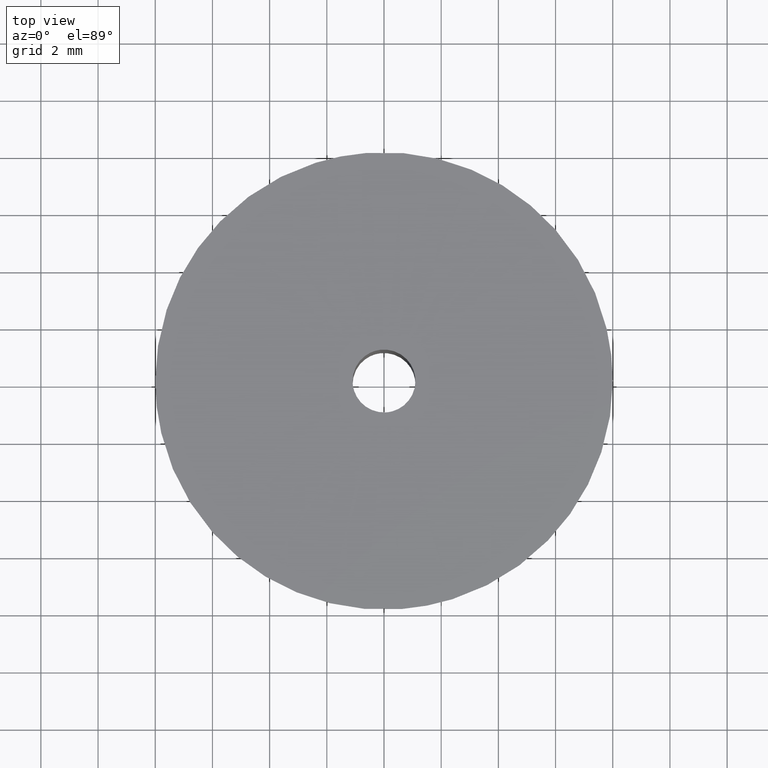
[diagram: clean part render]
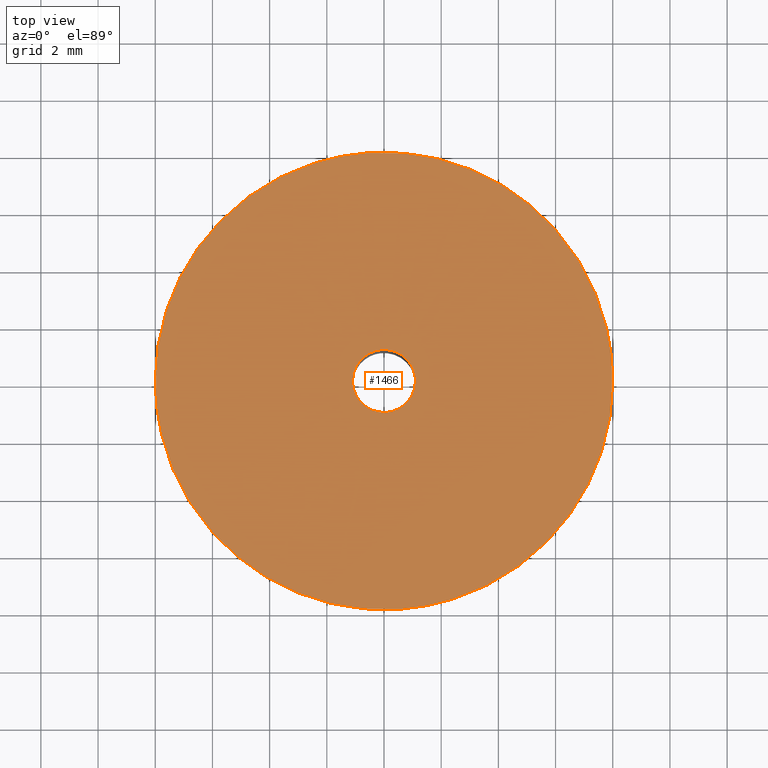
[diagram: same view with one face highlighted and labeled with its STEP entity id]
A machine part, top view. The second image highlights one B-rep face of the part: STEP entity #1466.
In plain terms, the highlighted face is a freeform B-spline surface patch.
Its self-contained STEP definition (entity closure, byte-faithful):
#549=CARTESIAN_POINT('',(0.627668122354431,-7.975338299087095,11.999997064181500));
#550=VERTEX_POINT('',#549);
#556=CARTESIAN_POINT('',(-8.0,0.0,12.0));
#557=VERTEX_POINT('',#556);
#558=CARTESIAN_POINT('',(0.627668122354431,-7.975338299087096,11.999997064181498));
#559=CARTESIAN_POINT('',(0.314318495939624,-7.999999281593804,11.999997117494733));
#560=CARTESIAN_POINT('',(-0.000000055408124,-7.999999295967855,11.999997175168620));
#561=CARTESIAN_POINT('',(-8.000000026615574,-7.999999661814576,11.999998643077864));
#562=CARTESIAN_POINT('',(-8.0,0.0,12.0));
#570=(BOUNDED_CURVE()B_SPLINE_CURVE(2,(#558,#559,#560,#561,#562),.UNSPECIFIED.,.F.,.U.)B_SPLINE_CURVE_WITH_KNOTS((3,2,3),(0.736331399203222,0.750000000000000,1.0),.UNSPECIFIED.)CURVE()GEOMETRIC_REPRESENTATION_ITEM()RATIONAL_B_SPLINE_CURVE((0.969723561880926,0.983986238063822,1.0,0.707106781186548,1.0))REPRESENTATION_ITEM(''));
#571=EDGE_CURVE('',#550,#557,#570,.T.);
#573=CARTESIAN_POINT('',(-0.627668122354432,7.975338299087094,11.999997064181500));
#574=VERTEX_POINT('',#573);
#575=CARTESIAN_POINT('',(-8.0,0.0,12.0));
#576=CARTESIAN_POINT('',(-7.999999971207449,7.395127832823927,11.999998532090750));
#577=CARTESIAN_POINT('',(-0.627668122354432,7.975338299087094,11.999997064181498));
#585=(BOUNDED_CURVE()B_SPLINE_CURVE(2,(#575,#576,#577),.UNSPECIFIED.,.F.,.U.)B_SPLINE_CURVE_WITH_KNOTS((3,3),(0.0,0.236331399203222),.UNSPECIFIED.)CURVE()GEOMETRIC_REPRESENTATION_ITEM()RATIONAL_B_SPLINE_CURVE((1.0,0.723120543122726,0.969723561880926))REPRESENTATION_ITEM(''));
#586=EDGE_CURVE('',#557,#574,#585,.T.);
#632=CARTESIAN_POINT('',(8.0,0.0,12.0));
#633=VERTEX_POINT('',#632);
#634=CARTESIAN_POINT('',(-0.627668122354432,7.975338299087094,11.999997064181498));
#635=CARTESIAN_POINT('',(-0.314318495939624,7.999999281593803,11.999997117494724));
#636=CARTESIAN_POINT('',(0.000000055408124,7.999999295967855,11.999997175168611));
#637=CARTESIAN_POINT('',(8.000000026615574,7.999999661814575,11.999998643077864));
#638=CARTESIAN_POINT('',(8.0,0.0,12.0));
#646=(BOUNDED_CURVE()B_SPLINE_CURVE(2,(#634,#635,#636,#637,#638),.UNSPECIFIED.,.F.,.U.)B_SPLINE_CURVE_WITH_KNOTS((3,2,3),(0.236331399203222,0.250000000000000,0.500000000000000),.UNSPECIFIED.)CURVE()GEOMETRIC_REPRESENTATION_ITEM()RATIONAL_B_SPLINE_CURVE((0.969723561880926,0.983986238063822,1.0,0.707106781186548,1.0))REPRESENTATION_ITEM(''));
#647=EDGE_CURVE('',#574,#633,#646,.T.);
#649=CARTESIAN_POINT('',(8.0,0.0,12.0));
#650=CARTESIAN_POINT('',(7.999999971207449,-7.395127832823927,11.999998532090750));
#651=CARTESIAN_POINT('',(0.627668122354431,-7.975338299087096,11.999997064181498));
#659=(BOUNDED_CURVE()B_SPLINE_CURVE(2,(#649,#650,#651),.UNSPECIFIED.,.F.,.U.)B_SPLINE_CURVE_WITH_KNOTS((3,3),(0.500000000000000,0.736331399203222),.UNSPECIFIED.)CURVE()GEOMETRIC_REPRESENTATION_ITEM()RATIONAL_B_SPLINE_CURVE((1.0,0.723120543122726,0.969723561880926))REPRESENTATION_ITEM(''));
#660=EDGE_CURVE('',#633,#550,#659,.T.);
#701=CARTESIAN_POINT('',(-0.129835685511386,1.092310713471145,12.000000000000011));
#702=VERTEX_POINT('',#701);
#703=CARTESIAN_POINT('',(1.100000000000000,0.0,12.0));
#704=VERTEX_POINT('',#703);
#705=CARTESIAN_POINT('',(-0.129835685511386,1.092310713471145,12.000000000000012));
#706=CARTESIAN_POINT('',(-0.065145534884748,1.100000000000000,12.000000000000002));
#707=CARTESIAN_POINT('',(0.0,1.100000000000000,12.0));
#708=CARTESIAN_POINT('',(1.100000000000000,1.100000000000000,12.0));
#709=CARTESIAN_POINT('',(1.100000000000000,0.0,12.0));
#717=(BOUNDED_CURVE()B_SPLINE_CURVE(2,(#705,#706,#707,#708,#709),.UNSPECIFIED.,.F.,.U.)B_SPLINE_CURVE_WITH_KNOTS((3,2,3),(0.229562778719813,0.250000000000000,0.500000000000000),.UNSPECIFIED.)CURVE()GEOMETRIC_REPRESENTATION_ITEM()RATIONAL_B_SPLINE_CURVE((0.956027352401419,0.976056305902572,1.0,0.707106781186548,1.0))REPRESENTATION_ITEM(''));
#718=EDGE_CURVE('',#702,#704,#717,.T.);
#759=CARTESIAN_POINT('',(0.067153393495066,-1.097948278263642,12.0));
#760=VERTEX_POINT('',#759);
#766=CARTESIAN_POINT('',(1.100000000000000,0.0,12.0));
#767=CARTESIAN_POINT('',(1.100000000000000,-1.034776673583570,12.0));
#768=CARTESIAN_POINT('',(0.067153393495066,-1.097948278263642,11.999999999999998));
#776=(BOUNDED_CURVE()B_SPLINE_CURVE(2,(#766,#767,#768),.UNSPECIFIED.,.F.,.U.)B_SPLINE_CURVE_WITH_KNOTS((3,3),(0.500000000000000,0.739332962239855),.UNSPECIFIED.)CURVE()GEOMETRIC_REPRESENTATION_ITEM()RATIONAL_B_SPLINE_CURVE((1.0,0.719603993285641,0.976072041668673))REPRESENTATION_ITEM(''));
#777=EDGE_CURVE('',#704,#760,#776,.T.);
#804=CARTESIAN_POINT('',(-1.100000000000000,0.0,12.0));
#805=VERTEX_POINT('',#804);
#806=CARTESIAN_POINT('',(-1.100000000000000,0.0,12.0));
#807=CARTESIAN_POINT('',(-1.100000000000000,0.976993755324632,12.0));
#808=CARTESIAN_POINT('',(-0.129835685511386,1.092310713471145,12.000000000000012));
#816=(BOUNDED_CURVE()B_SPLINE_CURVE(2,(#806,#807,#808),.UNSPECIFIED.,.F.,.U.)B_SPLINE_CURVE_WITH_KNOTS((3,3),(0.0,0.229562778719813),.UNSPECIFIED.)CURVE()GEOMETRIC_REPRESENTATION_ITEM()RATIONAL_B_SPLINE_CURVE((1.0,0.731050475283975,0.956027352401419))REPRESENTATION_ITEM(''));
#817=EDGE_CURVE('',#805,#702,#816,.T.);
#819=CARTESIAN_POINT('',(0.067153393495066,-1.097948278263642,11.999999999999996));
#820=CARTESIAN_POINT('',(0.033608039635190,-1.100000000000000,11.999999999999996));
#821=CARTESIAN_POINT('',(0.0,-1.100000000000000,12.0));
#822=CARTESIAN_POINT('',(-1.100000000000000,-1.100000000000000,12.0));
#823=CARTESIAN_POINT('',(-1.100000000000000,0.0,12.0));
#831=(BOUNDED_CURVE()B_SPLINE_CURVE(2,(#819,#820,#821,#822,#823),.UNSPECIFIED.,.F.,.U.)B_SPLINE_CURVE_WITH_KNOTS((3,2,3),(0.739332962239855,0.750000000000000,1.0),.UNSPECIFIED.)CURVE()GEOMETRIC_REPRESENTATION_ITEM()RATIONAL_B_SPLINE_CURVE((0.976072041668673,0.987502787900906,1.0,0.707106781186548,1.0))REPRESENTATION_ITEM(''));
#832=EDGE_CURVE('',#760,#805,#831,.T.);
#1449=CARTESIAN_POINT('',(8.799199968988896,-8.796757063472269,12.0));
#1450=CARTESIAN_POINT('',(-8.799200398142338,-8.796757063472269,12.0));
#1451=CARTESIAN_POINT('',(8.799199968988896,8.796757206523417,12.0));
#1452=CARTESIAN_POINT('',(-8.799200398142338,8.796757206523417,12.0));
#1453=B_SPLINE_SURFACE_WITH_KNOTS('',1,1,((#1449,#1451),(#1450,#1452)),.UNSPECIFIED.,.F.,.F.,.U.,(2,2),(2,2),(0.0,17.598400367131230),(0.0,17.593514269995691),.UNSPECIFIED.);
#1454=ORIENTED_EDGE('',*,*,#571,.F.);
#1455=ORIENTED_EDGE('',*,*,#660,.F.);
#1456=ORIENTED_EDGE('',*,*,#647,.F.);
#1457=ORIENTED_EDGE('',*,*,#586,.F.);
#1458=EDGE_LOOP('',(#1454,#1455,#1456,#1457));
#1459=FACE_OUTER_BOUND('',#1458,.T.);
#1460=ORIENTED_EDGE('',*,*,#777,.T.);
#1461=ORIENTED_EDGE('',*,*,#832,.T.);
#1462=ORIENTED_EDGE('',*,*,#817,.T.);
#1463=ORIENTED_EDGE('',*,*,#718,.T.);
#1464=EDGE_LOOP('',(#1460,#1461,#1462,#1463));
#1465=FACE_BOUND('',#1464,.T.);
#1466=ADVANCED_FACE('',(#1459,#1465),#1453,.F.);